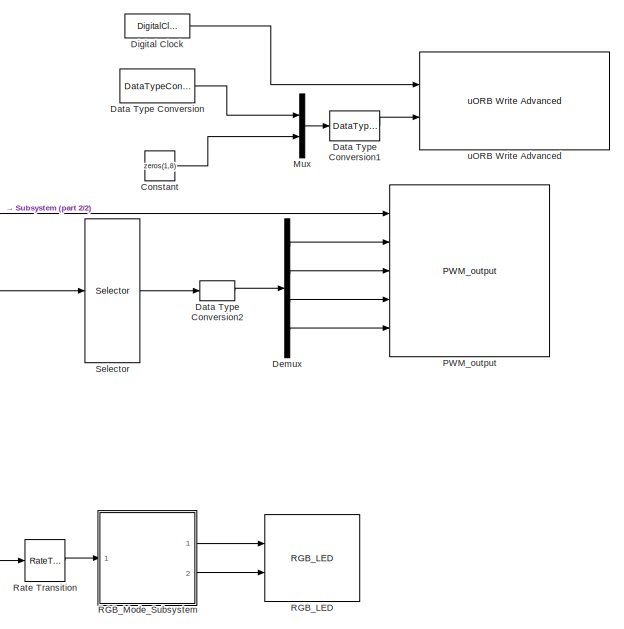
[diagram: root canvas - part 1/2, right side, full height]
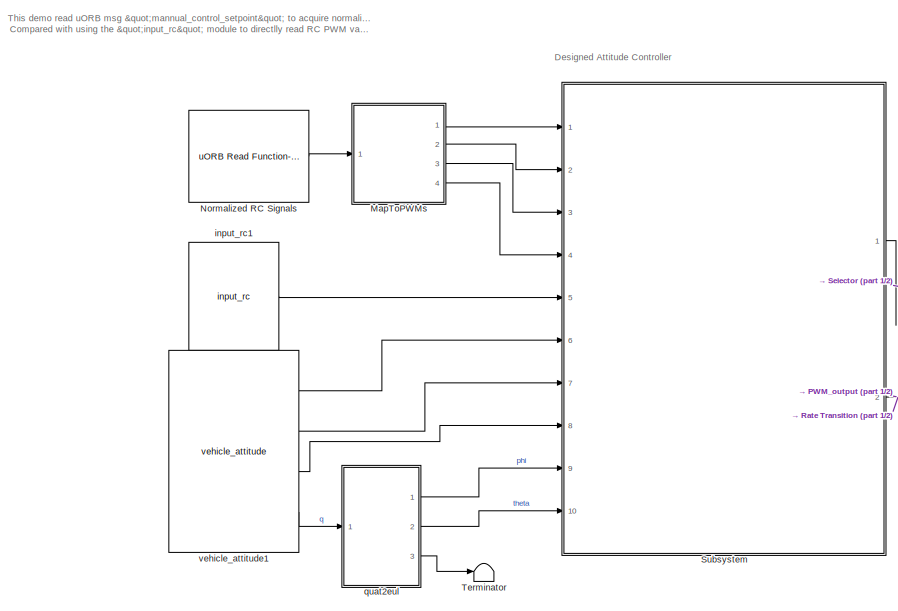
[diagram: root canvas - part 2/2, left side, full height]
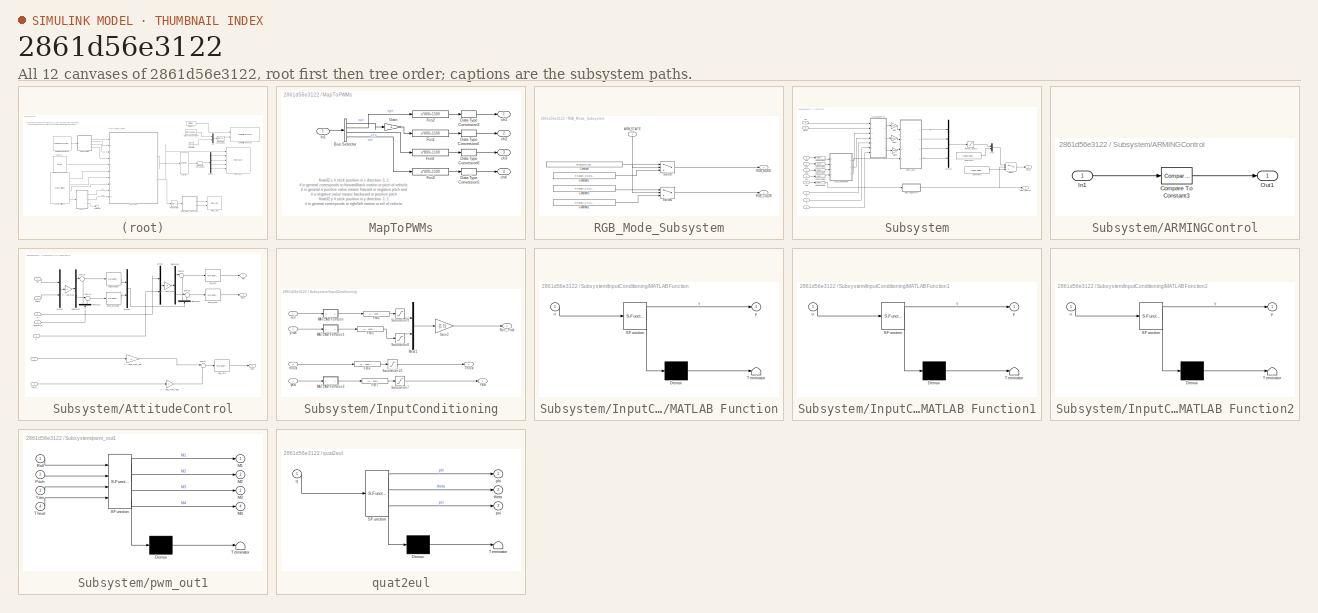
[diagram: thumbnail index - all 12 canvases of the model, root first then tree order]
MODEL slx_2861d56e3122
KIND model
CONFIG AbsTol = auto
CONFIG EnableMultiTasking = off
CONFIG FixedStep = auto
CONFIG InitFcn = Init_control
CONFIG MaxStep = auto
CONFIG MinStep = auto
CONFIG RelTol = 1e-3
CONFIG SampleTimeConstraint = Unconstrained
CONFIG Solver = FixedStepDiscrete
CONFIG SolverName = FixedStepDiscrete
CONFIG StartTime = 0.0
CONFIG StopTime = inf
BLOCK [Constant] Constant
  Commented = on
  Value = zeros(1,8)
BLOCK [DataTypeConversion] Data Type Conversion
  Commented = on
  OutDataTypeStr = double
  RndMeth = Floor
  SaturateOnIntegerOverflow = off
BLOCK [DataTypeConversion] Data Type Conversion1
  Commented = on
  OutDataTypeStr = single
  RndMeth = Floor
  SaturateOnIntegerOverflow = off
BLOCK [DataTypeConversion] Data Type Conversion2
  OutDataTypeStr = uint16
  RndMeth = Floor
  SaturateOnIntegerOverflow = off
BLOCK [Demux] Demux
  DisplayOption = bar
  Ports = [1, 4]
BLOCK [DigitalClock] Digital Clock
  Commented = on
  SampleTime = -1
BLOCK [SubSystem] MapToPWMs
  Ports = [1, 4]
  RequestExecContextInheritance = off
  Variant = off
BLOCK [BusSelector] MapToPWMs/Bus Selector
  OutputAsBus = off
  OutputSignals = x,y,z,r
  Ports = [1, 4]
BLOCK [DataTypeConversion] MapToPWMs/Data Type Conversion3
  OutDataTypeStr = uint16
  RndMeth = Floor
  SaturateOnIntegerOverflow = off
BLOCK [DataTypeConversion] MapToPWMs/Data Type Conversion4
  OutDataTypeStr = uint16
  RndMeth = Floor
  SaturateOnIntegerOverflow = off
BLOCK [DataTypeConversion] MapToPWMs/Data Type Conversion5
  OutDataTypeStr = uint16
  RndMeth = Floor
  SaturateOnIntegerOverflow = off
BLOCK [DataTypeConversion] MapToPWMs/Data Type Conversion6
  OutDataTypeStr = uint16
  RndMeth = Floor
  SaturateOnIntegerOverflow = off
BLOCK [Fcn] MapToPWMs/Fcn1
  Expr = u*400+1500
BLOCK [Fcn] MapToPWMs/Fcn2
  Expr = u*400+1500
BLOCK [Fcn] MapToPWMs/Fcn3
  Expr = u*400+1500
BLOCK [Fcn] MapToPWMs/Fcn4
  Expr = u*800+1100
BLOCK [Gain] MapToPWMs/Gain
  Gain = -1
  OutDataTypeStr = Inherit: Inherit via internal rule
  ParamDataTypeStr = Inherit: Inherit via internal rule
  SaturateOnIntegerOverflow = off
BLOCK [Inport] MapToPWMs/In1
  IconDisplay = Port number
BLOCK [Outport] MapToPWMs/ch1
  IconDisplay = Port number
BLOCK [Outport] MapToPWMs/ch2
  IconDisplay = Port number
  Port = 2
BLOCK [Outport] MapToPWMs/ch3
  IconDisplay = Port number
  Port = 3
BLOCK [Outport] MapToPWMs/ch4
  IconDisplay = Port number
  Port = 4
BLOCK [Mux] Mux
  Commented = on
  DisplayOption = bar
  Inputs = 2
  Ports = [2, 1]
BLOCK [Reference] Normalized RC Signals  REF=pixhawk_slib_uORB_RW/uORB Read Function-Call Trigger
  Ports = [0, 1]
  SourceBlock = pixhawk_slib_uORB_RW/uORB Read Function-Call Trigger
  SourceProductName = Pixhawk Target Blocks
BLOCK [Reference] PWM_output  REF=pixhawk_slib_sensors_actuators/PWM_output
  Description = This block allows the user to send the appropriate PWM signals out to the PX4 outputs.  \nThese are usually connected to the ESCs which control the motor speeds. \nIn order for the flight control to arm (enable) the output from the software side, the ARM Output input must be held high (boolean TRUE).  \nOnly then will the PWM values be sent out the PX4 hardware ports.  \nThis is usually a function of ...<+249ch>
  Ports = [5]
  SourceBlock = pixhawk_slib_sensors_actuators/PWM_output
  SourceProductName = Pixhawk Target Blocks
  SourceType = PX4_Output_PWM
BLOCK [Reference] RGB_LED  REF=pixhawk_slib_sensors_actuators/RGB_LED
  Ports = [2]
  SourceBlock = pixhawk_slib_sensors_actuators/RGB_LED
  SourceProductName = Pixhawk Target Blocks
  SourceType = PX4_RGBLED - controls the mode and color of the Pixhawk RGB LED
BLOCK [SubSystem] RGB_Mode_Subsystem
  Ports = [1, 2]
  RequestExecContextInheritance = off
  Variant = off
BLOCK [Inport] RGB_Mode_Subsystem/ARM_STATE
  IconDisplay = Port number
BLOCK [Constant] RGB_Mode_Subsystem/Constant
  OutDataTypeStr = Enum: RGBLED_MODE_ENUM
  Value = RGBLED_MODE_ENUM.SL_MODE_BLINK_FAST
BLOCK [Constant] RGB_Mode_Subsystem/Constant1
  OutDataTypeStr = Enum: RGBLED_MODE_ENUM
  Value = RGBLED_MODE_ENUM.SL_MODE_BREATHE
BLOCK [Constant] RGB_Mode_Subsystem/Constant2
  OutDataTypeStr = Enum: RGBLED_COLOR_ENUM
  Value = RGBLED_COLOR_ENUM.SL_COLOR_GREEN
BLOCK [Constant] RGB_Mode_Subsystem/Constant3
  OutDataTypeStr = Enum: RGBLED_COLOR_ENUM
  Value = RGBLED_COLOR_ENUM.SL_COLOR_RED
BLOCK [Outport] RGB_Mode_Subsystem/RGB_COLOR
  IconDisplay = Port number
  Port = 2
BLOCK [Outport] RGB_Mode_Subsystem/RGB_MODE
  IconDisplay = Port number
BLOCK [Switch] RGB_Mode_Subsystem/Switch
  Criteria = u2 ~= 0
  InputSameDT = off
  SaturateOnIntegerOverflow = off
  Threshold = 1500
BLOCK [Switch] RGB_Mode_Subsystem/Switch1
  Criteria = u2 ~= 0
  InputSameDT = off
  SaturateOnIntegerOverflow = off
  Threshold = 1500
BLOCK [RateTransition] Rate Transition
  OutPortSampleTime = 1
BLOCK [Selector] Selector
  IndexOptions = Index vector (dialog)
  Indices = [1 2 3 4]
  InputPortWidth = 8
  OutputSizes = 1
  Ports = [1, 1]
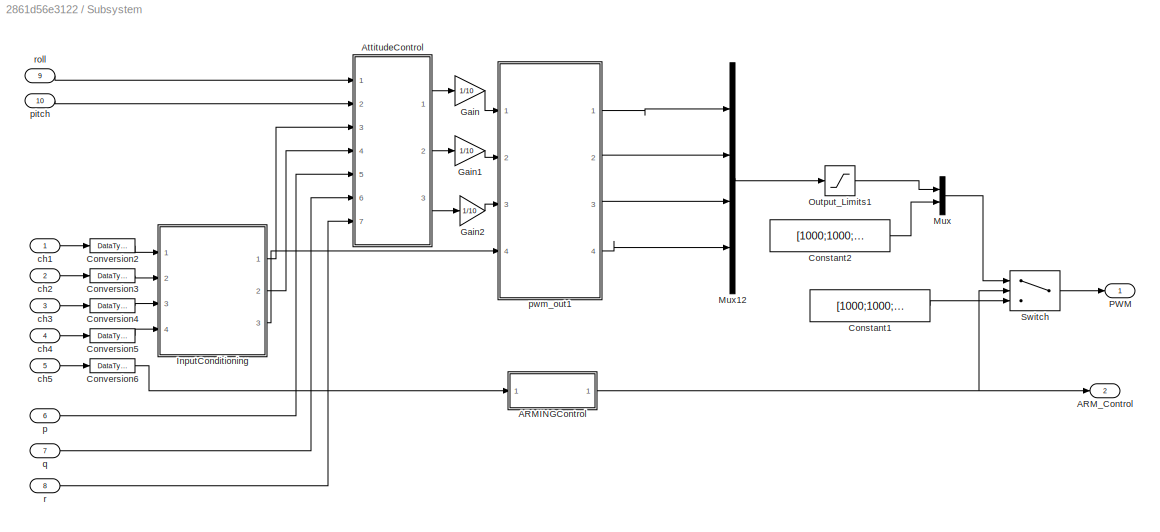
BLOCK [SubSystem] Subsystem
  Ports = [10, 2]
  RequestExecContextInheritance = off
  Variant = off
BLOCK [SubSystem] Subsystem/ARMINGControl
  Ports = [1, 1]
  RequestExecContextInheritance = off
  Variant = off
BLOCK [Reference] Subsystem/ARMINGControl/Compare To Constant3  REF=simulink/Logic and Bit
Operations/Compare
To Constant
  Ports = [1, 1]
  SourceBlock = simulink/Logic and Bit\nOperations/Compare\nTo Constant
  SourceProductBaseCode = SL
  SourceProductName = Simulink
  SourceType = Compare To Constant
BLOCK [Inport] Subsystem/ARMINGControl/In1
  IconDisplay = Port number
BLOCK [Outport] Subsystem/ARMINGControl/Out1
  IconDisplay = Port number
BLOCK [Outport] Subsystem/ARM_Control
  IconDisplay = Port number
  Port = 2
  PortDimensions = 1
  SamplingMode = Sample based
  SignalType = real
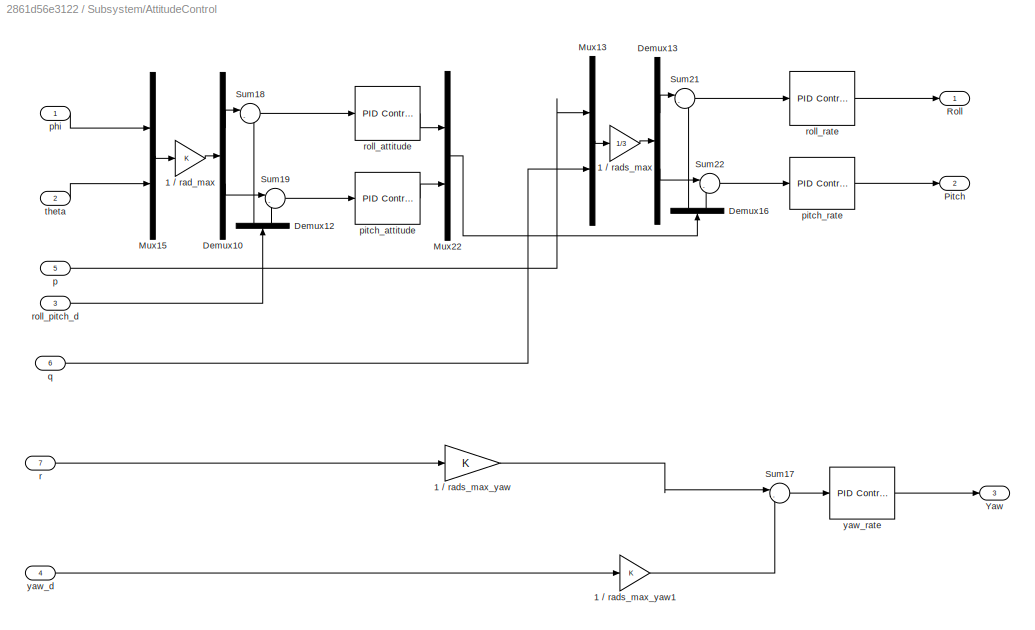
BLOCK [SubSystem] Subsystem/AttitudeControl
  Ports = [7, 3]
  RequestExecContextInheritance = off
  Variant = off
BLOCK [Gain] Subsystem/AttitudeControl/1 // rad_max
  OutDataTypeStr = Inherit: Inherit via internal rule
  ParamDataTypeStr = Inherit: Inherit via internal rule
  SaturateOnIntegerOverflow = off
BLOCK [Gain] Subsystem/AttitudeControl/1 // rads_max
  Gain = 1/3
  OutDataTypeStr = Inherit: Inherit via internal rule
  ParamDataTypeStr = Inherit: Inherit via internal rule
  SaturateOnIntegerOverflow = off
BLOCK [Gain] Subsystem/AttitudeControl/1 // rads_max_yaw
  OutDataTypeStr = Inherit: Inherit via internal rule
  ParamDataTypeStr = Inherit: Inherit via internal rule
  SaturateOnIntegerOverflow = off
BLOCK [Gain] Subsystem/AttitudeControl/1 // rads_max_yaw1
  OutDataTypeStr = Inherit: Inherit via internal rule
  ParamDataTypeStr = Inherit: Inherit via internal rule
  SaturateOnIntegerOverflow = off
BLOCK [Demux] Subsystem/AttitudeControl/Demux10
  DisplayOption = bar
  Outputs = 2
  Ports = [1, 2]
BLOCK [Demux] Subsystem/AttitudeControl/Demux12
  DisplayOption = bar
  Outputs = 2
  Ports = [1, 2]
BLOCK [Demux] Subsystem/AttitudeControl/Demux13
  DisplayOption = bar
  Outputs = 2
  Ports = [1, 2]
BLOCK [Demux] Subsystem/AttitudeControl/Demux16
  DisplayOption = bar
  Outputs = 2
  Ports = [1, 2]
BLOCK [Mux] Subsystem/AttitudeControl/Mux13
  DisplayOption = bar
  Inputs = 2
  Ports = [2, 1]
BLOCK [Mux] Subsystem/AttitudeControl/Mux15
  DisplayOption = bar
  Inputs = 2
  Ports = [2, 1]
BLOCK [Mux] Subsystem/AttitudeControl/Mux22
  DisplayOption = bar
  Inputs = 2
  Ports = [2, 1]
BLOCK [Outport] Subsystem/AttitudeControl/Pitch
  IconDisplay = Port number
  Port = 2
BLOCK [Outport] Subsystem/AttitudeControl/Roll
  IconDisplay = Port number
BLOCK [Sum] Subsystem/AttitudeControl/Sum17
  IconShape = round
  InputSameDT = off
  Inputs = |-+
  OutDataTypeStr = Inherit: Inherit via internal rule
  Ports = [2, 1]
  SaturateOnIntegerOverflow = off
BLOCK [Sum] Subsystem/AttitudeControl/Sum18
  IconShape = round
  InputSameDT = off
  Inputs = |-+
  OutDataTypeStr = Inherit: Inherit via internal rule
  Ports = [2, 1]
  SaturateOnIntegerOverflow = off
BLOCK [Sum] Subsystem/AttitudeControl/Sum19
  IconShape = round
  InputSameDT = off
  Inputs = |-+
  OutDataTypeStr = Inherit: Inherit via internal rule
  Ports = [2, 1]
  SaturateOnIntegerOverflow = off
BLOCK [Sum] Subsystem/AttitudeControl/Sum21
  IconShape = round
  InputSameDT = off
  Inputs = |-+
  OutDataTypeStr = Inherit: Inherit via internal rule
  Ports = [2, 1]
  SaturateOnIntegerOverflow = off
BLOCK [Sum] Subsystem/AttitudeControl/Sum22
  IconShape = round
  InputSameDT = off
  Inputs = |-+
  OutDataTypeStr = Inherit: Inherit via internal rule
  Ports = [2, 1]
  SaturateOnIntegerOverflow = off
BLOCK [Outport] Subsystem/AttitudeControl/Yaw
  IconDisplay = Port number
  Port = 3
BLOCK [Inport] Subsystem/AttitudeControl/p
  IconDisplay = Port number
  Port = 5
BLOCK [Inport] Subsystem/AttitudeControl/phi
  IconDisplay = Port number
BLOCK [Reference] Subsystem/AttitudeControl/pitch_attitude  REF=simulink/Continuous/PID Controller
  Ports = [1, 1]
  SourceBlock = simulink/Continuous/PID Controller
  SourceProductBaseCode = SL
  SourceProductName = Simulink
  SourceType = PID 1dof
BLOCK [Reference] Subsystem/AttitudeControl/pitch_rate  REF=simulink/Continuous/PID Controller
  Ports = [1, 1]
  SourceBlock = simulink/Continuous/PID Controller
  SourceProductBaseCode = SL
  SourceProductName = Simulink
  SourceType = PID 1dof
BLOCK [Inport] Subsystem/AttitudeControl/q
  IconDisplay = Port number
  Port = 6
BLOCK [Inport] Subsystem/AttitudeControl/r
  IconDisplay = Port number
  Port = 7
BLOCK [Reference] Subsystem/AttitudeControl/roll_attitude  REF=simulink/Continuous/PID Controller
  Ports = [1, 1]
  SourceBlock = simulink/Continuous/PID Controller
  SourceProductBaseCode = SL
  SourceProductName = Simulink
  SourceType = PID 1dof
BLOCK [Inport] Subsystem/AttitudeControl/roll_pitch_d
  IconDisplay = Port number
  Port = 3
BLOCK [Reference] Subsystem/AttitudeControl/roll_rate  REF=simulink/Continuous/PID Controller
  Ports = [1, 1]
  SourceBlock = simulink/Continuous/PID Controller
  SourceProductBaseCode = SL
  SourceProductName = Simulink
  SourceType = PID 1dof
BLOCK [Inport] Subsystem/AttitudeControl/theta
  IconDisplay = Port number
  Port = 2
BLOCK [Inport] Subsystem/AttitudeControl/yaw_d
  IconDisplay = Port number
  Port = 4
BLOCK [Reference] Subsystem/AttitudeControl/yaw_rate  REF=simulink/Continuous/PID Controller
  Ports = [1, 1]
  SourceBlock = simulink/Continuous/PID Controller
  SourceProductBaseCode = SL
  SourceProductName = Simulink
  SourceType = PID 1dof
BLOCK [Constant] Subsystem/Constant1
  Value = [1000;1000;1000;1000;1000;1000;1000;1000]
BLOCK [Constant] Subsystem/Constant2
  Value = [1000;1000;1000;1000]
BLOCK [DataTypeConversion] Subsystem/Conversion2
  OutDataTypeStr = double
  RndMeth = Floor
  SaturateOnIntegerOverflow = off
BLOCK [DataTypeConversion] Subsystem/Conversion3
  OutDataTypeStr = double
  RndMeth = Floor
  SaturateOnIntegerOverflow = off
BLOCK [DataTypeConversion] Subsystem/Conversion4
  OutDataTypeStr = double
  RndMeth = Floor
  SaturateOnIntegerOverflow = off
BLOCK [DataTypeConversion] Subsystem/Conversion5
  OutDataTypeStr = double
  RndMeth = Floor
  SaturateOnIntegerOverflow = off
BLOCK [DataTypeConversion] Subsystem/Conversion6
  OutDataTypeStr = double
  RndMeth = Floor
  SaturateOnIntegerOverflow = off
BLOCK [Gain] Subsystem/Gain
  Gain = 1/10
  OutDataTypeStr = Inherit: Inherit via internal rule
  ParamDataTypeStr = Inherit: Inherit via internal rule
  SaturateOnIntegerOverflow = off
BLOCK [Gain] Subsystem/Gain1
  Gain = 1/10
  OutDataTypeStr = Inherit: Inherit via internal rule
  ParamDataTypeStr = Inherit: Inherit via internal rule
  SaturateOnIntegerOverflow = off
BLOCK [Gain] Subsystem/Gain2
  Gain = 1/10
  OutDataTypeStr = Inherit: Inherit via internal rule
  ParamDataTypeStr = Inherit: Inherit via internal rule
  SaturateOnIntegerOverflow = off
BLOCK [SubSystem] Subsystem/InputConditioning
  Ports = [4, 3]
  RequestExecContextInheritance = off
  Variant = off
BLOCK [Fcn] Subsystem/InputConditioning/Fcn2
  Expr = (u - 1500) / 800
BLOCK [Fcn] Subsystem/InputConditioning/Fcn5
  Expr = (u - 1500) / 800
BLOCK [Fcn] Subsystem/InputConditioning/Fcn6
  Expr = (u - 1100) / 800
BLOCK [Fcn] Subsystem/InputConditioning/Fcn7
  Expr = (u - 1500) / 800
BLOCK [Gain] Subsystem/InputConditioning/Gain2
  Gain = [1 1]
  OutDataTypeStr = Inherit: Inherit via back propagation
  ParamDataTypeStr = Inherit: Inherit via internal rule
  SaturateOnIntegerOverflow = off
BLOCK [SubSystem] Subsystem/InputConditioning/MATLAB Function
  ErrorFcn = Stateflow.Translate.translate
  PermitHierarchicalResolution = ExplicitOnly
  Ports = [1, 1]
  RequestExecContextInheritance = off
  SFBlockType = MATLAB Function
  TreatAsAtomicUnit = on
  Variant = off
BLOCK [Demux] Subsystem/InputConditioning/MATLAB Function/ Demux 
  Outputs = 1
  Ports = [1, 1]
BLOCK [S-Function] Subsystem/InputConditioning/MATLAB Function/ SFunction 
  EnableBusSupport = on
  FunctionName = sf_sfun
  PortCounts = [1 2]
  Ports = [1, 2]
  SFcnIsStateOwnerBlock = off
  SFunctionDeploymentMode = off
  Tag = Stateflow S-Function Exp5_AttitudeSystemCodeGenRealFlight 1
BLOCK [Terminator] Subsystem/InputConditioning/MATLAB Function/ Terminator 
BLOCK [Inport] Subsystem/InputConditioning/MATLAB Function/u
  IconDisplay = Port number
BLOCK [Outport] Subsystem/InputConditioning/MATLAB Function/y
  IconDisplay = Port number
BLOCK [SubSystem] Subsystem/InputConditioning/MATLAB Function1
  ErrorFcn = Stateflow.Translate.translate
  PermitHierarchicalResolution = ExplicitOnly
  Ports = [1, 1]
  RequestExecContextInheritance = off
  SFBlockType = MATLAB Function
  TreatAsAtomicUnit = on
  Variant = off
BLOCK [Demux] Subsystem/InputConditioning/MATLAB Function1/ Demux 
  Outputs = 1
  Ports = [1, 1]
BLOCK [S-Function] Subsystem/InputConditioning/MATLAB Function1/ SFunction 
  EnableBusSupport = on
  FunctionName = sf_sfun
  PortCounts = [1 2]
  Ports = [1, 2]
  SFcnIsStateOwnerBlock = off
  SFunctionDeploymentMode = off
  Tag = Stateflow S-Function Exp5_AttitudeSystemCodeGenRealFlight 2
BLOCK [Terminator] Subsystem/InputConditioning/MATLAB Function1/ Terminator 
BLOCK [Inport] Subsystem/InputConditioning/MATLAB Function1/u
  IconDisplay = Port number
BLOCK [Outport] Subsystem/InputConditioning/MATLAB Function1/y
  IconDisplay = Port number
BLOCK [SubSystem] Subsystem/InputConditioning/MATLAB Function2
  ErrorFcn = Stateflow.Translate.translate
  PermitHierarchicalResolution = ExplicitOnly
  Ports = [1, 1]
  RequestExecContextInheritance = off
  SFBlockType = MATLAB Function
  TreatAsAtomicUnit = on
  Variant = off
BLOCK [Demux] Subsystem/InputConditioning/MATLAB Function2/ Demux 
  Outputs = 1
  Ports = [1, 1]
BLOCK [S-Function] Subsystem/InputConditioning/MATLAB Function2/ SFunction 
  EnableBusSupport = on
  FunctionName = sf_sfun
  PortCounts = [1 2]
  Ports = [1, 2]
  SFcnIsStateOwnerBlock = off
  SFunctionDeploymentMode = off
  Tag = Stateflow S-Function Exp5_AttitudeSystemCodeGenRealFlight 3
BLOCK [Terminator] Subsystem/InputConditioning/MATLAB Function2/ Terminator 
BLOCK [Inport] Subsystem/InputConditioning/MATLAB Function2/u
  IconDisplay = Port number
BLOCK [Outport] Subsystem/InputConditioning/MATLAB Function2/y
  IconDisplay = Port number
BLOCK [Mux] Subsystem/InputConditioning/Mux21
  DisplayOption = bar
  Inputs = 2
  Ports = [2, 1]
BLOCK [Outport] Subsystem/InputConditioning/Roll_Pitch
  IconDisplay = Port number
BLOCK [Saturate] Subsystem/InputConditioning/Saturation10
  InputPortMap = u0
  LowerLimit = 0
  Ports = [1, 1]
  UpperLimit = 1
BLOCK [Saturate] Subsystem/InputConditioning/Saturation7
  InputPortMap = u0
  LowerLimit = -1
  Ports = [1, 1]
  UpperLimit = 1
BLOCK [Saturate] Subsystem/InputConditioning/Saturation8
  InputPortMap = u0
  LowerLimit = -1
  Ports = [1, 1]
  UpperLimit = 1
BLOCK [Saturate] Subsystem/InputConditioning/Saturation9
  InputPortMap = u0
  LowerLimit = -1
  Ports = [1, 1]
  UpperLimit = 1
BLOCK [Outport] Subsystem/InputConditioning/Thrust
  IconDisplay = Port number
  Port = 3
BLOCK [Outport] Subsystem/InputConditioning/Yaw
  IconDisplay = Port number
  Port = 2
BLOCK [Inport] Subsystem/InputConditioning/pitch
  IconDisplay = Port number
  Port = 2
BLOCK [Inport] Subsystem/InputConditioning/roll
  IconDisplay = Port number
BLOCK [Inport] Subsystem/InputConditioning/thrust
  IconDisplay = Port number
  Port = 3
BLOCK [Inport] Subsystem/InputConditioning/yaw
  IconDisplay = Port number
  Port = 4
BLOCK [Mux] Subsystem/Mux
  DisplayOption = bar
  Inputs = 2
  Ports = [2, 1]
BLOCK [Mux] Subsystem/Mux12
  DisplayOption = bar
  Ports = [4, 1]
BLOCK [Saturate] Subsystem/Output_Limits1
  InputPortMap = u0
  LowerLimit = 1000
  Ports = [1, 1]
  UpperLimit = 2000
BLOCK [Outport] Subsystem/PWM
  IconDisplay = Port number
  PortDimensions = 8
  SamplingMode = Sample based
  SignalType = real
BLOCK [Switch] Subsystem/Switch
  Criteria = u2 > Threshold
  InputSameDT = off
  SaturateOnIntegerOverflow = off
  Threshold = 0.5
BLOCK [Inport] Subsystem/ch1
  IconDisplay = Port number
  OutDataTypeStr = uint16
  PortDimensions = 1
  SamplingMode = Sample based
  SignalType = real
BLOCK [Inport] Subsystem/ch2
  IconDisplay = Port number
  OutDataTypeStr = uint16
  Port = 2
  PortDimensions = 1
  SamplingMode = Sample based
  SignalType = real
BLOCK [Inport] Subsystem/ch3
  IconDisplay = Port number
  OutDataTypeStr = uint16
  Port = 3
  PortDimensions = 1
  SamplingMode = Sample based
  SignalType = real
BLOCK [Inport] Subsystem/ch4
  IconDisplay = Port number
  OutDataTypeStr = uint16
  Port = 4
  PortDimensions = 1
  SamplingMode = Sample based
  SignalType = real
BLOCK [Inport] Subsystem/ch5
  IconDisplay = Port number
  Interpolate = off
  OutDataTypeStr = uint16
  Port = 5
  PortDimensions = 1
  SamplingMode = Sample based
  SignalType = real
BLOCK [Inport] Subsystem/p
  IconDisplay = Port number
  Port = 6
  PortDimensions = 1
  SamplingMode = Sample based
  SignalType = real
BLOCK [Inport] Subsystem/pitch
  IconDisplay = Port number
  Port = 10
  PortDimensions = 1
  SamplingMode = Sample based
  SignalType = real
BLOCK [SubSystem] Subsystem/pwm_out1
  ErrorFcn = Stateflow.Translate.translate
  PermitHierarchicalResolution = ExplicitOnly
  Ports = [4, 4]
  RequestExecContextInheritance = off
  SFBlockType = MATLAB Function
  SystemSampleTime = 0.004
  TreatAsAtomicUnit = on
  Variant = off
BLOCK [Demux] Subsystem/pwm_out1/ Demux 
  Outputs = 1
  Ports = [1, 1]
BLOCK [S-Function] Subsystem/pwm_out1/ SFunction 
  EnableBusSupport = on
  FunctionName = sf_sfun
  PortCounts = [4 5]
  Ports = [4, 5]
  SFcnIsStateOwnerBlock = off
  SFunctionDeploymentMode = off
  Tag = Stateflow S-Function Exp5_AttitudeSystemCodeGenRealFlight 8
BLOCK [Terminator] Subsystem/pwm_out1/ Terminator 
BLOCK [Outport] Subsystem/pwm_out1/M1
  IconDisplay = Port number
BLOCK [Outport] Subsystem/pwm_out1/M2
  IconDisplay = Port number
  Port = 2
BLOCK [Outport] Subsystem/pwm_out1/M3
  IconDisplay = Port number
  Port = 3
BLOCK [Outport] Subsystem/pwm_out1/M4
  IconDisplay = Port number
  Port = 4
BLOCK [Inport] Subsystem/pwm_out1/Pitch
  IconDisplay = Port number
  Port = 2
BLOCK [Inport] Subsystem/pwm_out1/Roll
  IconDisplay = Port number
BLOCK [Inport] Subsystem/pwm_out1/Thrust
  IconDisplay = Port number
  Port = 4
BLOCK [Inport] Subsystem/pwm_out1/Yaw
  IconDisplay = Port number
  Port = 3
BLOCK [Inport] Subsystem/q
  IconDisplay = Port number
  Port = 7
  PortDimensions = 1
  SamplingMode = Sample based
  SignalType = real
BLOCK [Inport] Subsystem/r
  IconDisplay = Port number
  Port = 8
  PortDimensions = 1
  SamplingMode = Sample based
  SignalType = real
BLOCK [Inport] Subsystem/roll
  IconDisplay = Port number
  Port = 9
  PortDimensions = 1
  SamplingMode = Sample based
  SignalType = real
BLOCK [Terminator] Terminator
BLOCK [Reference] input_rc1  REF=pixhawk_slib_sensors_actuators/input_rc
  Description = RC Input Block\n\nThis block provides user input control to the model.\nIt uses the input_rc uORB topic.\n\nThe user has the ability to choose which channels are available as outputs from this block and also some optional outputs. These include \nChannels 1 through 18\ndouble data type indicating the PWM value from the controller \nmeasured pulse widths for each of the supported channels \nChannel Count \nu...<+1797ch>
  Ports = [0, 1]
  SourceBlock = pixhawk_slib_sensors_actuators/input_rc
  SourceProductName = Pixhawk Target Blocks
  SourceType = PX4_Input_RC
BLOCK [SubSystem] quat2eul
  ErrorFcn = Stateflow.Translate.translate
  PermitHierarchicalResolution = ExplicitOnly
  Ports = [1, 3]
  RequestExecContextInheritance = off
  SFBlockType = MATLAB Function
  TreatAsAtomicUnit = on
  Variant = off
BLOCK [Demux] quat2eul/ Demux 
  Outputs = 1
  Ports = [1, 1]
BLOCK [S-Function] quat2eul/ SFunction 
  EnableBusSupport = on
  FunctionName = sf_sfun
  PortCounts = [1 4]
  Ports = [1, 4]
  SFcnIsStateOwnerBlock = off
  SFunctionDeploymentMode = off
  Tag = Stateflow S-Function Exp5_AttitudeSystemCodeGenRealFlight 10
BLOCK [Terminator] quat2eul/ Terminator 
BLOCK [Outport] quat2eul/phi
  IconDisplay = Port number
BLOCK [Outport] quat2eul/psi
  IconDisplay = Port number
  Port = 3
BLOCK [Inport] quat2eul/q
  IconDisplay = Port number
BLOCK [Outport] quat2eul/theta
  IconDisplay = Port number
  Port = 2
BLOCK [Reference] uORB Write Advanced  REF=pixhawk_slib_uORB_RW/uORB Write Advanced
  Commented = on
  Ports = [2]
  SourceBlock = pixhawk_slib_uORB_RW/uORB Write Advanced
  SourceProductName = Pixhawk Target Blocks
  UserDataPersistent = on
BLOCK [Reference] vehicle_attitude1  REF=pixhawk_slib_sensors_actuators/vehicle_attitude
  Ports = [0, 4]
  SourceBlock = pixhawk_slib_sensors_actuators/vehicle_attitude
  SourceProductName = Pixhawk Target Blocks
  SourceType = PX4_Vehicle_Attitude
ANNOTATION (root): Designed Attitude Controller
ANNOTATION (root): This demo read uORB msg "mannual_control_setpoint" to acquire normalized and calibrated RC signals (-1~1 for pitch, roll, yaw control, and 0~1 for throttle control) and then map them to 1000~2000's PWMs values. Compared with using the "input_rc" module to directlly read RC PWM values, this is more reliable and convinenient because you don't need to worry about calibration of RCs.
ANNOTATION MapToPWMs: float32 x # stick position in x direction -1..1 # in general corresponds to forward/back motion or pitch of vehicle, # in general a positive value means forward or negative pitch and # a negative value means backward or positive pitch float32 y # stick position in y direction -1..1 # in general corresponds to right/left motion or roll of vehicle, # in general a positive value means right or positi...<+526ch>
LINE Constant:1 -> Mux:2
LINE Data Type Conversion1:1 -> uORB Write Advanced:2
LINE Data Type Conversion2:1 -> Demux:1
LINE Data Type Conversion:1 -> Mux:1
LINE Demux:1 -> PWM_output:2
LINE Demux:2 -> PWM_output:3
LINE Demux:3 -> PWM_output:4
LINE Demux:4 -> PWM_output:5
LINE Digital Clock:1 -> uORB Write Advanced:1
LINE MapToPWMs/Bus Selector:1 -> MapToPWMs/Gain:1
LINE MapToPWMs/Bus Selector:2 -> MapToPWMs/Fcn2:1
LINE MapToPWMs/Bus Selector:3 -> MapToPWMs/Fcn4:1
LINE MapToPWMs/Bus Selector:4 -> MapToPWMs/Fcn3:1
LINE MapToPWMs/Data Type Conversion3:1 -> MapToPWMs/ch1:1
LINE MapToPWMs/Data Type Conversion4:1 -> MapToPWMs/ch2:1
LINE MapToPWMs/Data Type Conversion5:1 -> MapToPWMs/ch4:1
LINE MapToPWMs/Data Type Conversion6:1 -> MapToPWMs/ch3:1
LINE MapToPWMs/Fcn1:1 -> MapToPWMs/Data Type Conversion4:1
LINE MapToPWMs/Fcn2:1 -> MapToPWMs/Data Type Conversion3:1
LINE MapToPWMs/Fcn3:1 -> MapToPWMs/Data Type Conversion5:1
LINE MapToPWMs/Fcn4:1 -> MapToPWMs/Data Type Conversion6:1
LINE MapToPWMs/Gain:1 -> MapToPWMs/Fcn1:1
LINE MapToPWMs/In1:1 -> MapToPWMs/Bus Selector:1
LINE MapToPWMs:1 -> Subsystem:1
LINE MapToPWMs:2 -> Subsystem:2
LINE MapToPWMs:3 -> Subsystem:3
LINE MapToPWMs:4 -> Subsystem:4
LINE Mux:1 -> Data Type Conversion1:1
LINE Normalized RC Signals:1 -> MapToPWMs:1
NET RGB_Mode_Subsystem/ARM_STATE:1 -> RGB_Mode_Subsystem/Switch1:2, RGB_Mode_Subsystem/Switch:2
LINE RGB_Mode_Subsystem/Constant1:1 -> RGB_Mode_Subsystem/Switch:3
LINE RGB_Mode_Subsystem/Constant2:1 -> RGB_Mode_Subsystem/Switch1:3
LINE RGB_Mode_Subsystem/Constant3:1 -> RGB_Mode_Subsystem/Switch1:1
LINE RGB_Mode_Subsystem/Constant:1 -> RGB_Mode_Subsystem/Switch:1
LINE RGB_Mode_Subsystem/Switch1:1 -> RGB_Mode_Subsystem/RGB_COLOR:1
LINE RGB_Mode_Subsystem/Switch:1 -> RGB_Mode_Subsystem/RGB_MODE:1
LINE RGB_Mode_Subsystem:1 -> RGB_LED:1
LINE RGB_Mode_Subsystem:2 -> RGB_LED:2
LINE Rate Transition:1 -> RGB_Mode_Subsystem:1
LINE Selector:1 -> Data Type Conversion2:1
LINE Subsystem/ARMINGControl/Compare To Constant3:1 -> Subsystem/ARMINGControl/Out1:1
LINE Subsystem/ARMINGControl/In1:1 -> Subsystem/ARMINGControl/Compare To Constant3:1
NET Subsystem/ARMINGControl:1 -> Subsystem/ARM_Control:1, Subsystem/Switch:2
LINE Subsystem/AttitudeControl/1 // rad_max:1 -> Subsystem/AttitudeControl/Demux10:1
LINE Subsystem/AttitudeControl/1 // rads_max:1 -> Subsystem/AttitudeControl/Demux13:1
LINE Subsystem/AttitudeControl/1 // rads_max_yaw1:1 -> Subsystem/AttitudeControl/Sum17:2
LINE Subsystem/AttitudeControl/1 // rads_max_yaw:1 -> Subsystem/AttitudeControl/Sum17:1
LINE Subsystem/AttitudeControl/Demux10:1 -> Subsystem/AttitudeControl/Sum18:1
LINE Subsystem/AttitudeControl/Demux10:2 -> Subsystem/AttitudeControl/Sum19:1
LINE Subsystem/AttitudeControl/Demux12:1 -> Subsystem/AttitudeControl/Sum18:2
LINE Subsystem/AttitudeControl/Demux12:2 -> Subsystem/AttitudeControl/Sum19:2
LINE Subsystem/AttitudeControl/Demux13:1 -> Subsystem/AttitudeControl/Sum21:1
LINE Subsystem/AttitudeControl/Demux13:2 -> Subsystem/AttitudeControl/Sum22:1
LINE Subsystem/AttitudeControl/Demux16:1 -> Subsystem/AttitudeControl/Sum21:2
LINE Subsystem/AttitudeControl/Demux16:2 -> Subsystem/AttitudeControl/Sum22:2
LINE Subsystem/AttitudeControl/Mux13:1 -> Subsystem/AttitudeControl/1 // rads_max:1
LINE Subsystem/AttitudeControl/Mux15:1 -> Subsystem/AttitudeControl/1 // rad_max:1
LINE Subsystem/AttitudeControl/Mux22:1 -> Subsystem/AttitudeControl/Demux16:1
LINE Subsystem/AttitudeControl/Sum17:1 -> Subsystem/AttitudeControl/yaw_rate:1
LINE Subsystem/AttitudeControl/Sum18:1 -> Subsystem/AttitudeControl/roll_attitude:1
LINE Subsystem/AttitudeControl/Sum19:1 -> Subsystem/AttitudeControl/pitch_attitude:1
LINE Subsystem/AttitudeControl/Sum21:1 -> Subsystem/AttitudeControl/roll_rate:1
LINE Subsystem/AttitudeControl/Sum22:1 -> Subsystem/AttitudeControl/pitch_rate:1
LINE Subsystem/AttitudeControl/p:1 -> Subsystem/AttitudeControl/Mux13:1
LINE Subsystem/AttitudeControl/phi:1 -> Subsystem/AttitudeControl/Mux15:1
LINE Subsystem/AttitudeControl/pitch_attitude:1 -> Subsystem/AttitudeControl/Mux22:2
LINE Subsystem/AttitudeControl/pitch_rate:1 -> Subsystem/AttitudeControl/Pitch:1
LINE Subsystem/AttitudeControl/q:1 -> Subsystem/AttitudeControl/Mux13:2
LINE Subsystem/AttitudeControl/r:1 -> Subsystem/AttitudeControl/1 // rads_max_yaw:1
LINE Subsystem/AttitudeControl/roll_attitude:1 -> Subsystem/AttitudeControl/Mux22:1
LINE Subsystem/AttitudeControl/roll_pitch_d:1 -> Subsystem/AttitudeControl/Demux12:1
LINE Subsystem/AttitudeControl/roll_rate:1 -> Subsystem/AttitudeControl/Roll:1
LINE Subsystem/AttitudeControl/theta:1 -> Subsystem/AttitudeControl/Mux15:2
LINE Subsystem/AttitudeControl/yaw_d:1 -> Subsystem/AttitudeControl/1 // rads_max_yaw1:1
LINE Subsystem/AttitudeControl/yaw_rate:1 -> Subsystem/AttitudeControl/Yaw:1
LINE Subsystem/AttitudeControl:1 -> Subsystem/Gain:1
LINE Subsystem/AttitudeControl:2 -> Subsystem/Gain1:1
LINE Subsystem/AttitudeControl:3 -> Subsystem/Gain2:1
LINE Subsystem/Constant1:1 -> Subsystem/Switch:3
LINE Subsystem/Constant2:1 -> Subsystem/Mux:2
LINE Subsystem/Conversion2:1 -> Subsystem/InputConditioning:1
LINE Subsystem/Conversion3:1 -> Subsystem/InputConditioning:2
LINE Subsystem/Conversion4:1 -> Subsystem/InputConditioning:3
LINE Subsystem/Conversion5:1 -> Subsystem/InputConditioning:4
LINE Subsystem/Conversion6:1 -> Subsystem/ARMINGControl:1
LINE Subsystem/Gain1:1 -> Subsystem/pwm_out1:2
LINE Subsystem/Gain2:1 -> Subsystem/pwm_out1:3
LINE Subsystem/Gain:1 -> Subsystem/pwm_out1:1
LINE Subsystem/InputConditioning/Fcn2:1 -> Subsystem/InputConditioning/Saturation9:1
LINE Subsystem/InputConditioning/Fcn5:1 -> Subsystem/InputConditioning/Saturation8:1
LINE Subsystem/InputConditioning/Fcn6:1 -> Subsystem/InputConditioning/Saturation10:1
LINE Subsystem/InputConditioning/Fcn7:1 -> Subsystem/InputConditioning/Saturation7:1
LINE Subsystem/InputConditioning/Gain2:1 -> Subsystem/InputConditioning/Roll_Pitch:1
LINE Subsystem/InputConditioning/MATLAB Function1:1 -> Subsystem/InputConditioning/Fcn5:1
LINE Subsystem/InputConditioning/MATLAB Function2:1 -> Subsystem/InputConditioning/Fcn7:1
LINE Subsystem/InputConditioning/MATLAB Function:1 -> Subsystem/InputConditioning/Fcn2:1
LINE Subsystem/InputConditioning/Mux21:1 -> Subsystem/InputConditioning/Gain2:1
LINE Subsystem/InputConditioning/Saturation10:1 -> Subsystem/InputConditioning/Thrust:1
LINE Subsystem/InputConditioning/Saturation7:1 -> Subsystem/InputConditioning/Yaw:1
LINE Subsystem/InputConditioning/Saturation8:1 -> Subsystem/InputConditioning/Mux21:2
LINE Subsystem/InputConditioning/Saturation9:1 -> Subsystem/InputConditioning/Mux21:1
LINE Subsystem/InputConditioning/pitch:1 -> Subsystem/InputConditioning/MATLAB Function1:1
LINE Subsystem/InputConditioning/roll:1 -> Subsystem/InputConditioning/MATLAB Function:1
LINE Subsystem/InputConditioning/thrust:1 -> Subsystem/InputConditioning/Fcn6:1
LINE Subsystem/InputConditioning/yaw:1 -> Subsystem/InputConditioning/MATLAB Function2:1
LINE Subsystem/InputConditioning:1 -> Subsystem/AttitudeControl:3
LINE Subsystem/InputConditioning:2 -> Subsystem/AttitudeControl:4
LINE Subsystem/InputConditioning:3 -> Subsystem/pwm_out1:4
LINE Subsystem/Mux12:1 -> Subsystem/Output_Limits1:1
LINE Subsystem/Mux:1 -> Subsystem/Switch:1
LINE Subsystem/Output_Limits1:1 -> Subsystem/Mux:1
LINE Subsystem/Switch:1 -> Subsystem/PWM:1
LINE Subsystem/ch1:1 -> Subsystem/Conversion2:1
LINE Subsystem/ch2:1 -> Subsystem/Conversion3:1
LINE Subsystem/ch3:1 -> Subsystem/Conversion4:1
LINE Subsystem/ch4:1 -> Subsystem/Conversion5:1
LINE Subsystem/ch5:1 -> Subsystem/Conversion6:1
LINE Subsystem/p:1 -> Subsystem/AttitudeControl:5
LINE Subsystem/pitch:1 -> Subsystem/AttitudeControl:2
LINE Subsystem/pwm_out1:1 -> Subsystem/Mux12:1
LINE Subsystem/pwm_out1:2 -> Subsystem/Mux12:2
LINE Subsystem/pwm_out1:3 -> Subsystem/Mux12:3
LINE Subsystem/pwm_out1:4 -> Subsystem/Mux12:4
LINE Subsystem/q:1 -> Subsystem/AttitudeControl:6
LINE Subsystem/r:1 -> Subsystem/AttitudeControl:7
LINE Subsystem/roll:1 -> Subsystem/AttitudeControl:1
LINE Subsystem:1 -> Selector:1
NET Subsystem:2 -> PWM_output:1, Rate Transition:1
LINE input_rc1:1 -> Subsystem:5
LINE quat2eul:1 -> Subsystem:9
LINE quat2eul:2 -> Subsystem:10
LINE quat2eul:3 -> Terminator:1
LINE vehicle_attitude1:1 -> Subsystem:6
LINE vehicle_attitude1:2 -> Subsystem:7
LINE vehicle_attitude1:3 -> Subsystem:8
LINE vehicle_attitude1:4 -> quat2eul:1
note: NET lines group one-source signal fan-out (src -> all destinations, sorted); 1:1 wires keep LINE
CHART Subsystem/InputConditioning/MATLAB Function states=1 transitions=1
  STATE_LABEL 'eML_blk_kernel()'
  STATE_LABEL 'SCRIPT:\nfunction y = fcn(u)\n\n if(u>1550)\n    y=u;\n else\n     if(u<1450)\n     y=u;\n     else\n         y=1500;\n     end\n end\n \n'
CHART Subsystem/InputConditioning/MATLAB Function1 states=1 transitions=1
  STATE_LABEL 'eML_blk_kernel()'
  STATE_LABEL 'SCRIPT:\nfunction y = fcn(u)\n\n if(u>1550)\n    y=u;\n else\n     if(u<1450)\n     y=u;\n     else\n         y=1500;\n     end\n end\n \n'
CHART Subsystem/InputConditioning/MATLAB Function2 states=1 transitions=1
  STATE_LABEL 'eML_blk_kernel()'
  STATE_LABEL 'SCRIPT:\nfunction y = fcn(u)\n\n if(u>1550)\n    y=u;\n else\n     if(u<1450)\n     y=u;\n     else\n         y=1500;\n     end\n end\n \n'
CHART Subsystem/pwm_out1 states=1 transitions=1
  STATE_LABEL 'eML_blk_kernel()'
  STATE_LABEL 'SCRIPT:\nfunction [M1, M2, M3, M4] = motor_mixer(Roll, Pitch, Yaw, Thrust)\n\nidle_PWM = 1000;\n\n% Quad XROLL （根据QP里面的叉字形结构的文字）\n% M1 = ((Pitch+ Yaw)+Thrust-Roll) * 1000 + idle_PWM;\n %M2 = ((Pitch - Yaw)+Thrust+Roll) * 1000 + idle_PWM;\n %M3 = ((Roll +Yaw) + Thrust-Pitch) * 1000 + idle_PWM;\n %M4 = ((-Roll - Pitch-Yaw) + Thrust) * 1000 + idle_PWM;\n% M5 = 1000;\n% M6 = 1000;\n% M7 = 1000;\n% M8 = 1000;\n%qp上实...<+2078ch>'
CHART quat2eul states=1 transitions=1
  STATE_LABEL 'eML_blk_kernel()'
  STATE_LABEL 'SCRIPT:\nfunction [phi,theta,psi] = quat2eul(q)\n% Conversion from Quaternion to Euler angles based on the PX4 Firmware\n% v1.6.5 release.\n% \n% Quaternion -> DCM -> Euler Angles\n% INPUT:\n%   q: Quaternion vector of the format: (a + bi + cj + dk)\n% OUTPUT:\n%   [phi,theta,psi]: Euler angles in radians.\n% \n \n    a = q(1);\n    b = q(2);\n    c = q(3);\n    d = q(4);\n\n    aSq = a*a;\n    bSq = b*b;\n    cSq =...<+673ch>'
